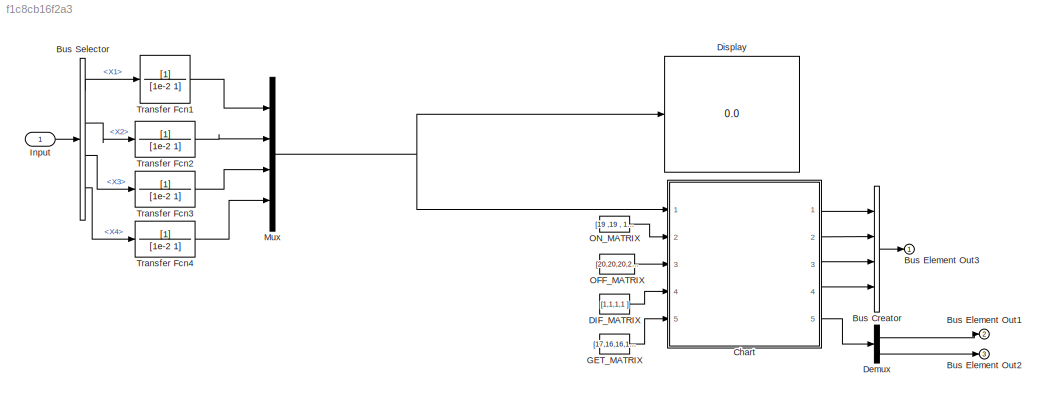
MODEL slx_f1c8cb16f2a3
KIND model
CONFIG AbsTol = auto
CONFIG EnableMultiTasking = off
CONFIG FixedStep = auto
CONFIG MaxStep = auto
CONFIG MinStep = auto
CONFIG RelTol = 1e-3
CONFIG SampleTimeConstraint = Unconstrained
CONFIG SolverName = VariableStepAuto
CONFIG StartTime = 0.0
CONFIG StopTime = inf
BLOCK [BusCreator] Bus Creator
  DisplayOption = bar
  InheritFromInputs = on
  Inputs = 4
  OutDataTypeStr = Bus: Hi
  Ports = [4, 1]
BLOCK [Outport] Bus Element Out1
  Port = 2
BLOCK [Outport] Bus Element Out2
  Port = 3
BLOCK [Outport] Bus Element Out3
BLOCK [BusSelector] Bus Selector
  OutputSignals = X1,X2,X3,X4
  Ports = [1, 4]
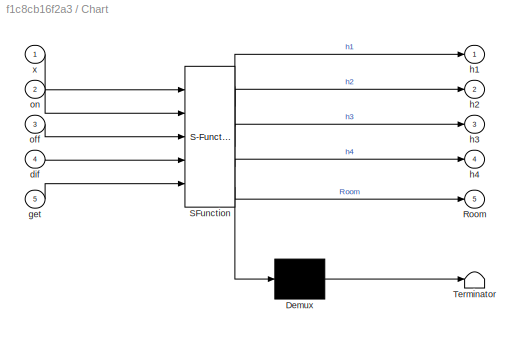
BLOCK [SubSystem] Chart
  ErrorFcn = Stateflow.Translate.translate
  PermitHierarchicalResolution = ExplicitOnly
  Ports = [5, 5]
  RequestExecContextInheritance = off
  SFBlockType = Chart
  TreatAsAtomicUnit = on
BLOCK [Demux] Chart/ Demux 
  Outputs = 1
  Ports = [1, 1]
BLOCK [S-Function] Chart/ SFunction 
  EnableBusSupport = on
  FunctionName = sf_sfun
  PortCounts = [5 6]
  Ports = [5, 6]
  SFcnIsStateOwnerBlock = off
  SFunctionDeploymentMode = off
  Tag = Stateflow S-Function 3
BLOCK [Terminator] Chart/ Terminator 
BLOCK [Outport] Chart/Room
  Port = 5
BLOCK [Inport] Chart/dif
  Port = 4
BLOCK [Inport] Chart/get
  Port = 5
BLOCK [Outport] Chart/h1
BLOCK [Outport] Chart/h2
  Port = 2
BLOCK [Outport] Chart/h3
  Port = 3
BLOCK [Outport] Chart/h4
  Port = 4
BLOCK [Inport] Chart/off
  Port = 3
BLOCK [Inport] Chart/on
  Port = 2
BLOCK [Inport] Chart/x
BLOCK [Constant] DIF_MATRIX
  Value = [1,1,1,1 ]
BLOCK [Demux] Demux
  Outputs = 2
  Ports = [1, 2]
BLOCK [Display] Display
  Decimation = 1
  Ports = [1]
BLOCK [Constant] GET_MATRIX
  Value = [17,16,16,17 ]
BLOCK [Inport] Input
  OutDataTypeStr = Bus: Xi
BLOCK [Mux] Mux
  DisplayOption = bar
  Ports = [4, 1]
BLOCK [Constant] OFF_MATRIX
  Value = [20,20,20,20 ]
BLOCK [Constant] ON_MATRIX
  Value = [19 ,19 , 19 , 19 ]
BLOCK [TransferFcn] Transfer Fcn1
  Denominator = [1e-2 1]
BLOCK [TransferFcn] Transfer Fcn2
  Denominator = [1e-2 1]
BLOCK [TransferFcn] Transfer Fcn3
  Denominator = [1e-2 1]
BLOCK [TransferFcn] Transfer Fcn4
  Denominator = [1e-2 1]
LINE Bus Creator:1 -> Bus Element Out3:1
LINE Bus Selector:1 -> Transfer Fcn1:1
LINE Bus Selector:2 -> Transfer Fcn2:1
LINE Bus Selector:3 -> Transfer Fcn3:1
LINE Bus Selector:4 -> Transfer Fcn4:1
LINE Chart:1 -> Bus Creator:1
LINE Chart:2 -> Bus Creator:2
LINE Chart:3 -> Bus Creator:3
LINE Chart:4 -> Bus Creator:4
LINE Chart:5 -> Demux:1
LINE DIF_MATRIX:1 -> Chart:4
LINE Demux:1 -> Bus Element Out1:1
LINE Demux:2 -> Bus Element Out2:1
LINE GET_MATRIX:1 -> Chart:5
LINE Input:1 -> Bus Selector:1
NET Mux:1 -> Chart:1, Display:1
LINE OFF_MATRIX:1 -> Chart:3
LINE ON_MATRIX:1 -> Chart:2
LINE Transfer Fcn1:1 -> Mux:1
LINE Transfer Fcn2:1 -> Mux:2
LINE Transfer Fcn3:1 -> Mux:3
LINE Transfer Fcn4:1 -> Mux:4
note: NET lines group one-source signal fan-out (src -> all destinations, sorted); 1:1 wires keep LINE
CHART Chart states=43 transitions=62
  STATE_LABEL 'st13\nentry:\n  h2 = 0;\n  h4 = 0;\n  Room=[1,3];'
  STATE_LABEL 's1'
  STATE_LABEL 's1_on\nentry:\n  h1 = 1'
  STATE_LABEL 's1_off\nentry:\n  h1 = 0'
  STATE_LABEL '[x(1)>=off(1)]'
  STATE_LABEL '[x(1)<=on(1)]'
  STATE_LABEL 's3'
  STATE_LABEL 's3_on\nentry:\n  h3 = 1'
  STATE_LABEL 's3_off\nentry:\n  h3 = 0'
  STATE_LABEL '[x(3)>=off(3)]'
  STATE_LABEL '[x(3)<=on(3)]'
  STATE_LABEL 's1'
  STATE_LABEL 's1_on\nentry:\n  h1 = 1'
  STATE_LABEL 's1_off\nentry:\n  h1 = 0'
  STATE_LABEL '[x(1)>=off(1)]'
  STATE_LABEL '[x(1)<=on(1)]'
  STATE_LABEL 's1_on\nentry:\n  h1 = 1'
  STATE_LABEL 's1_off\nentry:\n  h1 = 0'
  STATE_LABEL 's3'
  STATE_LABEL 's3_on\nentry:\n  h3 = 1'
  STATE_LABEL 's3_off\nentry:\n  h3 = 0'
  STATE_LABEL '[x(3)>=off(3)]'
  STATE_LABEL '[x(3)<=on(3)]'
  STATE_LABEL 's3_on\nentry:\n  h3 = 1'
  STATE_LABEL 's3_off\nentry:\n  h3 = 0'
  STATE_LABEL 'st14\nentry:\n  h2 = 0;\n  h3 = 0;\n  Room=[1,4];\n'
  STATE_LABEL 's1'
  STATE_LABEL 's1_on\nentry:\n  h1 = 1'
  STATE_LABEL 's1_off\nentry:\n  h1 = 0'
  STATE_LABEL '[x(1)>=off(1)]'
  STATE_LABEL '[x(1)<=on(1)]'
  STATE_LABEL 's4'
  STATE_LABEL 's4_on\nentry:\n  h4 = 1'
  STATE_LABEL 's4_off\nentry:\n  h4 = 0'
  STATE_LABEL '[x(4)>=off(4)]'
  STATE_LABEL '[x(4)<=on(4)]'
  STATE_LABEL 's1'
  STATE_LABEL 's1_on\nentry:\n  h1 = 1'
  STATE_LABEL 's1_off\nentry:\n  h1 = 0'
  STATE_LABEL '[x(1)>=off(1)]'
CHART  states=0 transitions=0
